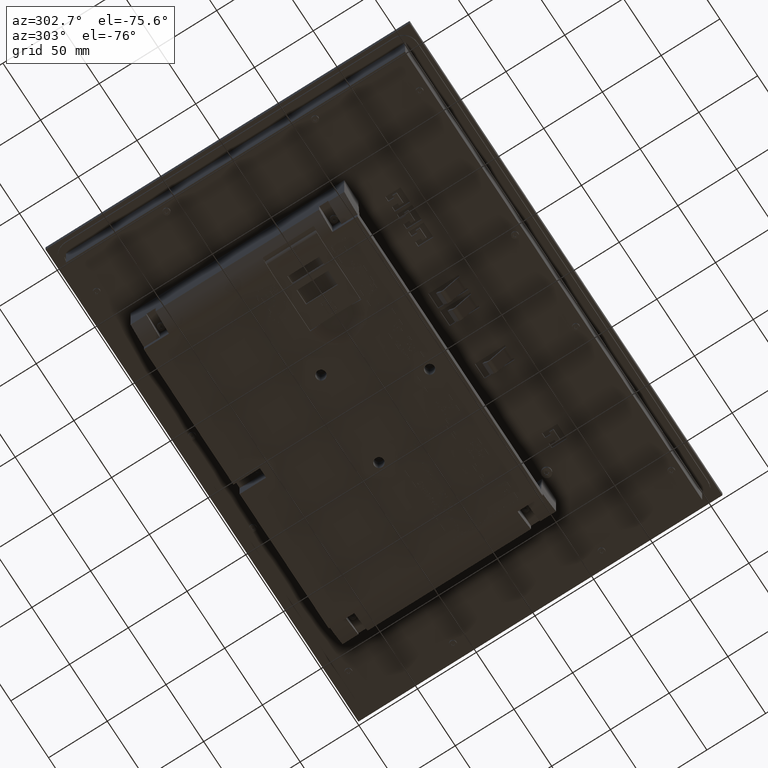
[diagram: clean part render]
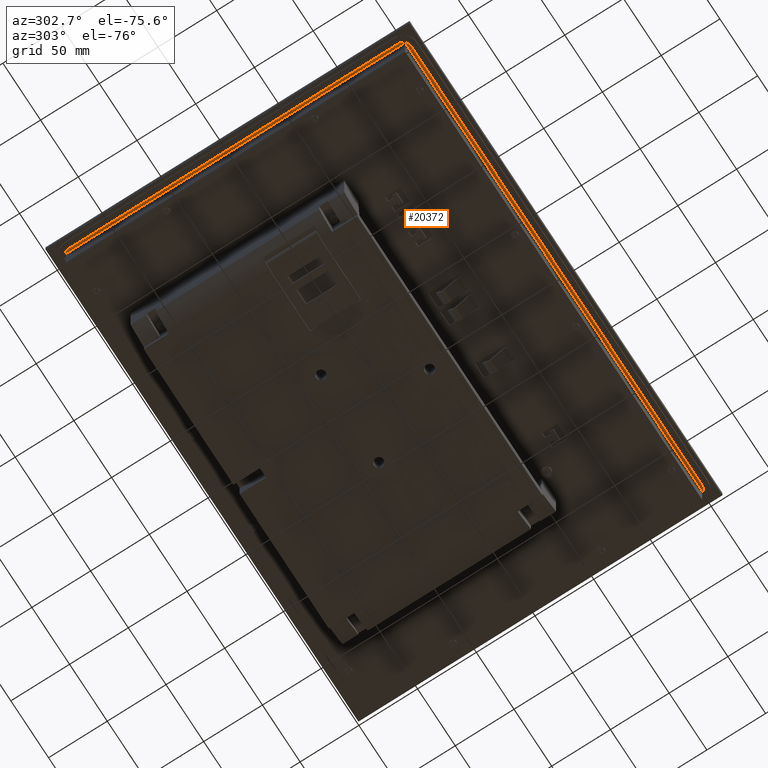
[diagram: same view with one face highlighted and labeled with its STEP entity id]
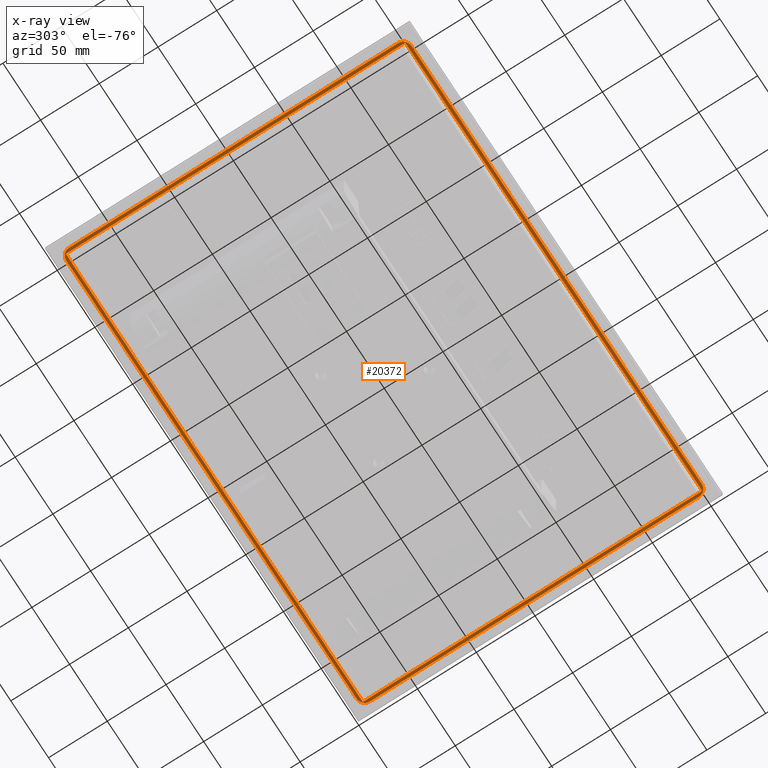
[diagram: x-ray of the same camera — body ghosted, the highlighted face saturated]
A machine part, auxiliary view. The second image highlights one B-rep face of the part: STEP entity #20372.
The next image is the same camera in x-ray: the body ghosted, the highlighted face saturated — about 0% of this face is hidden behind the body in this view.
In plain terms, the highlighted planar face has unit normal (0, 0, -1).
Its self-contained STEP definition (entity closure, byte-faithful):
#4546=LINE('',#72894,#10041);
#4547=LINE('',#72899,#10042);
#4548=LINE('',#72903,#10043);
#4549=LINE('',#72907,#10044);
#4550=LINE('',#72910,#10045);
#4551=LINE('',#72913,#10046);
#4552=LINE('',#72915,#10047);
#4553=LINE('',#72917,#10048);
#10041=VECTOR('',#59740,1.);
#10042=VECTOR('',#59743,1.);
#10043=VECTOR('',#59746,1.);
#10044=VECTOR('',#59749,1.);
#10045=VECTOR('',#59752,1.);
#10046=VECTOR('',#59753,1.);
#10047=VECTOR('',#59754,1.);
#10048=VECTOR('',#59755,1.);
#17860=PLANE('',#54736);
#20372=ADVANCED_FACE('',(#23434,#23435),#17860,.T.);
#23434=FACE_BOUND('',#24461,.T.);
#23435=FACE_BOUND('',#24462,.T.);
#24461=EDGE_LOOP('',(#29405,#29406,#29407,#29408,#29409,#29410,#29411,#29412));
#24462=EDGE_LOOP('',(#29413,#29414,#29415,#29416));
#29405=ORIENTED_EDGE('',*,*,#47327,.F.);
#29406=ORIENTED_EDGE('',*,*,#47328,.F.);
#29407=ORIENTED_EDGE('',*,*,#47329,.F.);
#29408=ORIENTED_EDGE('',*,*,#47330,.F.);
#29409=ORIENTED_EDGE('',*,*,#47331,.F.);
#29410=ORIENTED_EDGE('',*,*,#47332,.F.);
#29411=ORIENTED_EDGE('',*,*,#47333,.F.);
#29412=ORIENTED_EDGE('',*,*,#47334,.F.);
#29413=ORIENTED_EDGE('',*,*,#47335,.F.);
#29414=ORIENTED_EDGE('',*,*,#47336,.F.);
#29415=ORIENTED_EDGE('',*,*,#47337,.F.);
#29416=ORIENTED_EDGE('',*,*,#47338,.F.);
#42271=VERTEX_POINT('',#72895);
#42272=VERTEX_POINT('',#72896);
#42273=VERTEX_POINT('',#72898);
#42274=VERTEX_POINT('',#72900);
#42275=VERTEX_POINT('',#72902);
#42276=VERTEX_POINT('',#72904);
#42277=VERTEX_POINT('',#72906);
#42278=VERTEX_POINT('',#72908);
#42279=VERTEX_POINT('',#72911);
#42280=VERTEX_POINT('',#72912);
#42281=VERTEX_POINT('',#72914);
#42282=VERTEX_POINT('',#72916);
#47327=EDGE_CURVE('',#42271,#42272,#4546,.T.);
#47328=EDGE_CURVE('',#42273,#42271,#53588,.T.);
#47329=EDGE_CURVE('',#42274,#42273,#4547,.T.);
#47330=EDGE_CURVE('',#42275,#42274,#53589,.T.);
#47331=EDGE_CURVE('',#42276,#42275,#4548,.T.);
#47332=EDGE_CURVE('',#42277,#42276,#53590,.T.);
#47333=EDGE_CURVE('',#42278,#42277,#4549,.T.);
#47334=EDGE_CURVE('',#42272,#42278,#53591,.T.);
#47335=EDGE_CURVE('',#42279,#42280,#4550,.T.);
#47336=EDGE_CURVE('',#42281,#42279,#4551,.T.);
#47337=EDGE_CURVE('',#42282,#42281,#4552,.T.);
#47338=EDGE_CURVE('',#42280,#42282,#4553,.T.);
#53588=CIRCLE('',#54732,6.983148973264);
#53589=CIRCLE('',#54733,6.983148973264);
#53590=CIRCLE('',#54734,6.983148973264);
#53591=CIRCLE('',#54735,6.983148973264);
#54732=AXIS2_PLACEMENT_3D('',#72897,#59741,#59742);
#54733=AXIS2_PLACEMENT_3D('',#72901,#59744,#59745);
#54734=AXIS2_PLACEMENT_3D('',#72905,#59747,#59748);
#54735=AXIS2_PLACEMENT_3D('',#72909,#59750,#59751);
#54736=AXIS2_PLACEMENT_3D('',#72918,#59756,#59757);
#59740=DIRECTION('',(0.,-1.,0.));
#59741=DIRECTION('',(0.,0.,1.));
#59742=DIRECTION('',(-0.999999999999999,0.,0.));
#59743=DIRECTION('',(-1.,0.,0.));
#59744=DIRECTION('',(0.,0.,1.));
#59745=DIRECTION('',(0.,0.999999999999999,0.));
#59746=DIRECTION('',(0.,1.,0.));
#59747=DIRECTION('',(0.,0.,1.));
#59748=DIRECTION('',(0.999999999999999,0.,0.));
#59749=DIRECTION('',(1.,0.,0.));
#59750=DIRECTION('',(0.,0.,1.));
#59751=DIRECTION('',(0.,-0.999999999999999,0.));
#59752=DIRECTION('',(1.,0.,0.));
#59753=DIRECTION('',(0.,1.,0.));
#59754=DIRECTION('',(-1.,0.,0.));
#59755=DIRECTION('',(0.,-1.,0.));
#59756=DIRECTION('',(0.,0.,-1.));
#59757=DIRECTION('',(-1.,0.,0.));
#72894=CARTESIAN_POINT('',(-199.4831489739,140.,-2.5));
#72895=CARTESIAN_POINT('',(-199.4831489739,140.,-2.5));
#72896=CARTESIAN_POINT('',(-199.483148973264,-140.,-2.5));
#72897=CARTESIAN_POINT('',(-192.5,140.,-2.5));
#72898=CARTESIAN_POINT('',(-192.5,146.9831489739,-2.5));
#72899=CARTESIAN_POINT('',(192.5,146.9831489739,-2.5));
#72900=CARTESIAN_POINT('',(192.5,146.983148973264,-2.5));
#72901=CARTESIAN_POINT('',(192.5,140.,-2.5));
#72902=CARTESIAN_POINT('',(199.4831489739,140.,-2.5));
#72903=CARTESIAN_POINT('',(199.4831489739,-140.,-2.5));
#72904=CARTESIAN_POINT('',(199.483148973264,-140.,-2.5));
#72905=CARTESIAN_POINT('',(192.5,-140.,-2.5));
#72906=CARTESIAN_POINT('',(192.5,-146.9831489739,-2.5));
#72907=CARTESIAN_POINT('',(-192.5,-146.9831489739,-2.5));
#72908=CARTESIAN_POINT('',(-192.5,-146.983148973264,-2.5));
#72909=CARTESIAN_POINT('',(-192.5,-140.,-2.5));
#72910=CARTESIAN_POINT('',(-196.949999,144.45,-2.5));
#72911=CARTESIAN_POINT('',(-196.949999,144.45,-2.5));
#72912=CARTESIAN_POINT('',(196.95,144.45,-2.5));
#72913=CARTESIAN_POINT('',(-196.949999,-144.45,-2.5));
#72914=CARTESIAN_POINT('',(-196.949999,-144.45,-2.5));
#72915=CARTESIAN_POINT('',(196.95,-144.45,-2.5));
#72916=CARTESIAN_POINT('',(196.95,-144.45,-2.5));
#72917=CARTESIAN_POINT('',(196.95,144.45,-2.5));
#72918=CARTESIAN_POINT('',(207.500000000019,-155.,-2.5));